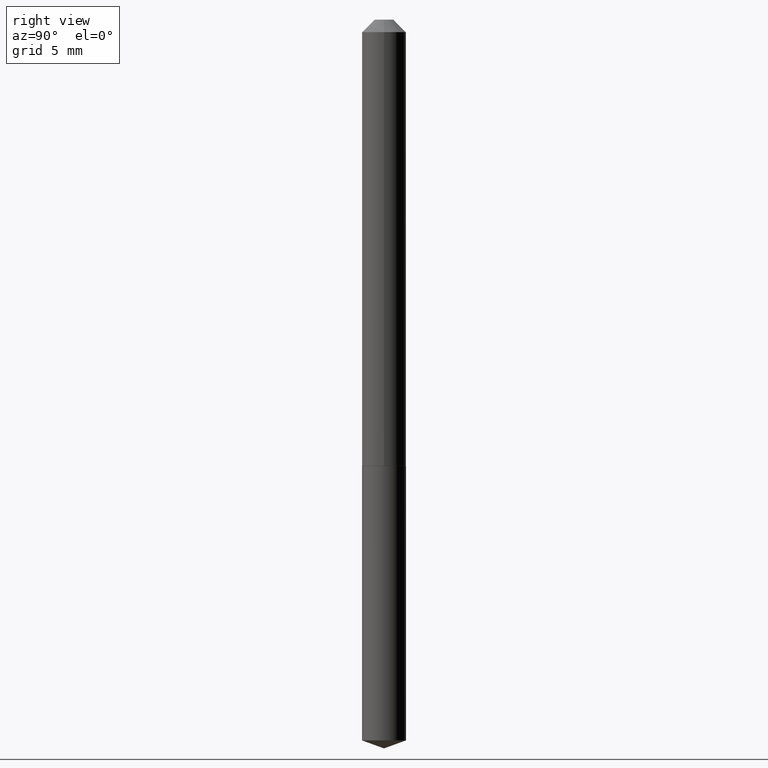
[diagram: clean part render]
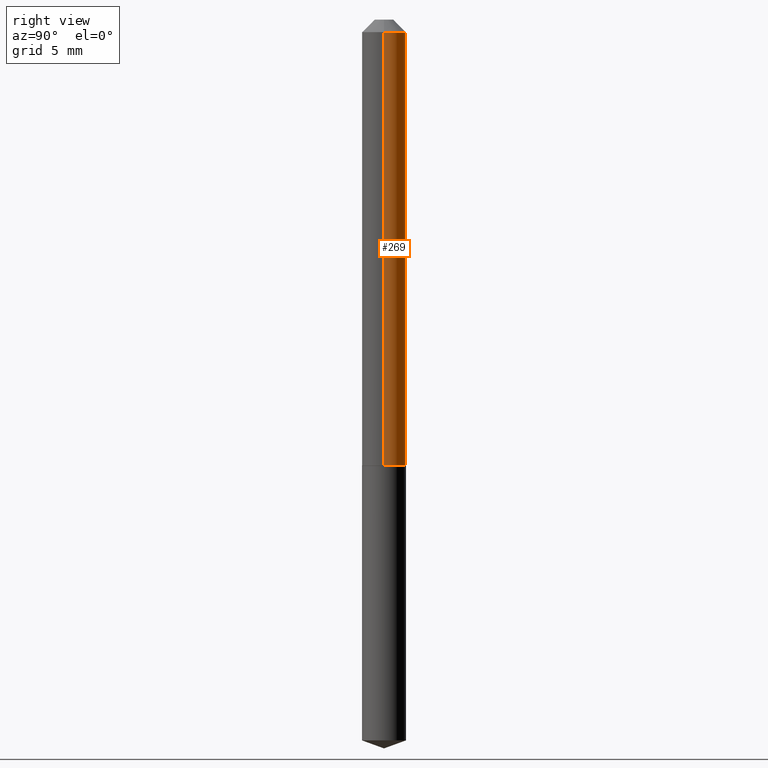
[diagram: same view with one face highlighted and labeled with its STEP entity id]
A machine part, right view. The second image highlights one B-rep face of the part: STEP entity #269.
In plain terms, the highlighted cylindrical surface (edge-blend (fillet) strip) has radius 1.3894 mm, axis along (-0, 0, 1).
Its self-contained STEP definition (entity closure, byte-faithful):
#9 = VERTEX_POINT ( 'NONE', #244 ) ;
#15 = DIRECTION ( 'NONE',  ( -2.445468806185136597E-29, 3.491481338843145583E-15, 1.000000000000000000 ) ) ;
#22 = VECTOR ( 'NONE', #57, 39.37007874015748143 ) ;
#24 = DIRECTION ( 'NONE',  ( 1.000000000000000000, -6.982962677686266711E-15, 4.876176775795936353E-29 ) ) ;
#31 = DIRECTION ( 'NONE',  ( 1.000000000000000000, -6.982962677686269866E-15, 0.000000000000000000 ) ) ;
#41 = ORIENTED_EDGE ( 'NONE', *, *, #301, .F. ) ;
#43 = CARTESIAN_POINT ( 'NONE',  ( 7.642090019328602662E-31, -1.091087918388490267E-16, -0.03125000000000020817 ) ) ;
#50 = VERTEX_POINT ( 'NONE', #366 ) ;
#54 = AXIS2_PLACEMENT_3D ( 'NONE', #320, #384, #31 ) ;
#57 = DIRECTION ( 'NONE',  ( -2.445468806185136877E-29, 3.491481338843145188E-15, 1.000000000000000000 ) ) ;
#91 = LINE ( 'NONE', #128, #192 ) ;
#99 = DIRECTION ( 'NONE',  ( 1.000000000000000000, -6.982962677686266711E-15, 0.000000000000000000 ) ) ;
#101 = EDGE_CURVE ( 'NONE', #50, #332, #91, .T. ) ;
#118 = CIRCLE ( 'NONE', #54, 0.05470000000000013046 ) ;
#119 = ORIENTED_EDGE ( 'NONE', *, *, #101, .T. ) ;
#128 = CARTESIAN_POINT ( 'NONE',  ( -0.05470000000000006801, 3.886668764607752849E-16, -2.690657494369436511E-30 ) ) ;
#133 = EDGE_CURVE ( 'NONE', #9, #332, #371, .T. ) ;
#139 = AXIS2_PLACEMENT_3D ( 'NONE', #354, #323, #24 ) ;
#144 = FACE_OUTER_BOUND ( 'NONE', #173, .T. ) ;
#159 = DIRECTION ( 'NONE',  ( -2.445468806185136877E-29, 3.491481338843145188E-15, 1.000000000000000000 ) ) ;
#167 = AXIS2_PLACEMENT_3D ( 'NONE', #43, #15, #99 ) ;
#173 = EDGE_LOOP ( 'NONE', ( #341, #119, #292, #41 ) ) ;
#176 = CARTESIAN_POINT ( 'NONE',  ( -0.05470000000000000556, -1.601739347780230402E-15, -0.03125000000000020817 ) ) ;
#192 = VECTOR ( 'NONE', #159, 39.37007874015748143 ) ;
#236 = CYLINDRICAL_SURFACE ( 'NONE', #139, 0.05470000000000006801 ) ;
#244 = CARTESIAN_POINT ( 'NONE',  ( 0.05470000000000000556, -4.910768503082878866E-16, -0.03125000000000020817 ) ) ;
#269 = ADVANCED_FACE ( 'NONE', ( #144 ), #236, .T. ) ;
#283 = EDGE_CURVE ( 'NONE', #346, #50, #118, .T. ) ;
#292 = ORIENTED_EDGE ( 'NONE', *, *, #133, .F. ) ;
#301 = EDGE_CURVE ( 'NONE', #346, #9, #327, .T. ) ;
#320 = CARTESIAN_POINT ( 'NONE',  ( 2.711780359178698087E-29, -3.871703656643164443E-15, -1.108899999999999997 ) ) ;
#323 = DIRECTION ( 'NONE',  ( -2.445468806185136597E-29, 3.491481338843145583E-15, 1.000000000000000000 ) ) ;
#327 = LINE ( 'NONE', #386, #22 ) ;
#329 = CARTESIAN_POINT ( 'NONE',  ( 0.05470000000000013046, -4.253671715112603623E-15, -1.108899999999999997 ) ) ;
#332 = VERTEX_POINT ( 'NONE', #176 ) ;
#341 = ORIENTED_EDGE ( 'NONE', *, *, #283, .T. ) ;
#346 = VERTEX_POINT ( 'NONE', #329 ) ;
#354 = CARTESIAN_POINT ( 'NONE',  ( 0.000000000000000000, 0.000000000000000000, 0.000000000000000000 ) ) ;
#366 = CARTESIAN_POINT ( 'NONE',  ( -0.05470000000000013046, -3.483036780182388665E-15, -1.108899999999999997 ) ) ;
#371 = CIRCLE ( 'NONE', #167, 0.05470000000000000556 ) ;
#384 = DIRECTION ( 'NONE',  ( -2.445468806185136597E-29, 3.491481338843145583E-15, 1.000000000000000000 ) ) ;
#386 = CARTESIAN_POINT ( 'NONE',  ( 0.05470000000000006801, -3.819680584694392790E-16, 2.667268696360380458E-30 ) ) ;